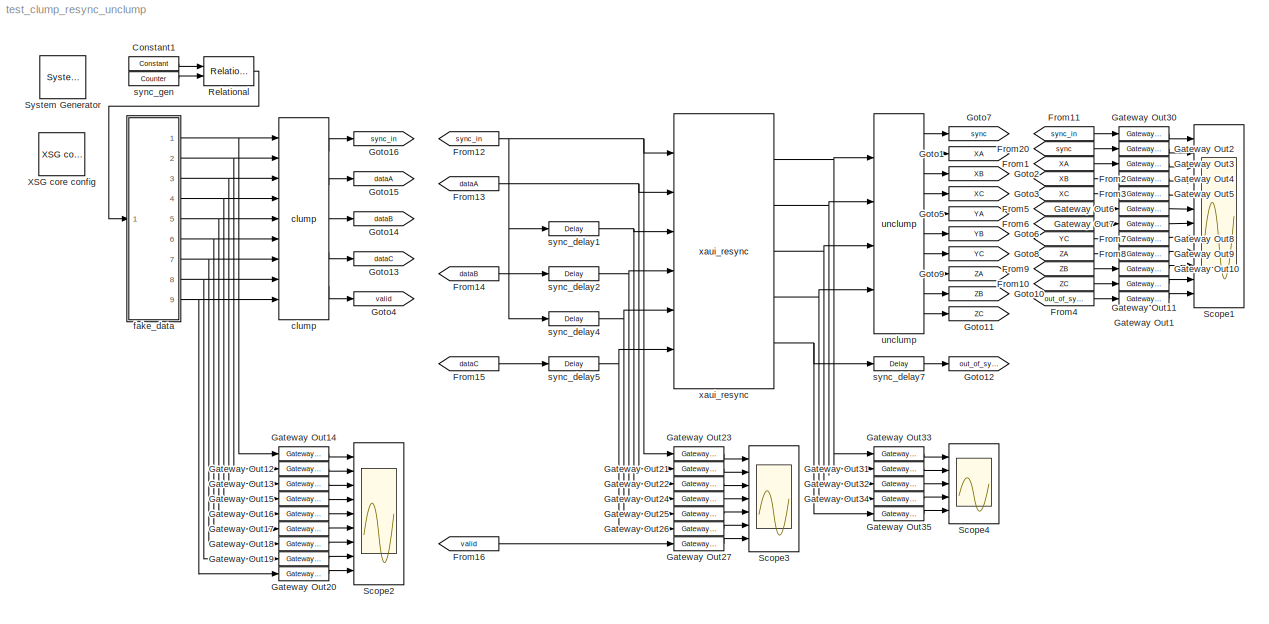
MODEL test_clump_resync_unclump
KIND model
BLOCK [Reference]  System Generator  REF=xbsIndex_r4/ System Generator
  AttributesFormatString = System\\nGenerator
  FunctionWithSeparateData = off
  Ports = []
  RTWMemSecDataConstants = Inherit from model
  RTWMemSecDataInternal = Inherit from model
  RTWMemSecDataParameters = Inherit from model
  RTWMemSecFuncExecute = Inherit from model
  RTWMemSecFuncInitTerm = Inherit from model
  SID = 1
  ShowPortLabels = FromPortIcon
  SourceBlock = xbsIndex_r4/ System Generator
  SourceType = Xilinx System Generator Block
  SystemSampleTime = -1
  Tag = genX
  UserData = DataTag0
  UserDataPersistent = on
  block_type = sysgen
  block_version = 10.1.1
  clock_wrapper = Clock Enables
  core_generation = According to Block Masks
  dbl_ovrd = According to Block Masks
  dcm_input_clock_period = 100
  deprecated_control = off
  directory = ./test_link_mux_demux/sysgen
  eval_field = 0
  has_advanced_control = 0
  incr_netlist = off
  infoedit = System Generator
  package = ff1136
  part = xc5vsx95t
  run_coregen = off
  sg_icon_stat = 46,43,-1,-1,red,beige,0,07734,right
  sg_mask_display = fprintf('','COMMENT: begin icon graphics');\npatch([0 46 46 0 ],[0 0 43 43 ],[0.93 0.92 0.86]);\npatch([11 4 14 4 11 22 25 28 40 30 21 14 23 14 21 30 40 28 25 22 11 ],[5 12 22 32 39 39 36 39 39 29 38 31 22 13 6 15 5 5 8 5 5 ],[0.6 0.2 0.25]);\nplot([0 46 46 0 0 ],[0 0 43 43 0 ]);\nfprintf('','COMMENT: end icon graphics');\nfprintf('','COMMENT: begin icon text');\nfprintf('','COMMENT: end icon text...<+5ch>
  sggui_pos = -1,-1,-1,-1
  simulink_period = 1
  speed = -1
  synthesis_tool = XST
  sysclk_period = 5
  testbench = off
  trim_vbits = Everywhere in SubSystem
  xilinxfamily = virtex5
BLOCK [Reference] Constant1  REF=xbsIndex_r4/Constant
  Ports = [0, 1]
  SID = 199
  SourceBlock = xbsIndex_r4/Constant
  SourceType = Xilinx Constant Block Block
  arith_type = Unsigned
  bin_pt = 0
  block_type = constant
  block_version = 10.1.3
  carry = CIN
  const = 15
  dbl_ovrd = off
  dsp48_infoedit = The use of this block for DSP48 instructions is deprecated.  Please use the Opmode block.
  equ = P=C
  explicit_period = on
  has_advanced_control = 0
  inp1 = P
  inp2 = PCIN>>17
  n_bits = 7
  opr = +
  opselect = C
  period = 1
  sg_icon_stat = 50,14,0,1,white,blue,0,1164c07c,right,
  sg_list_contents = {'table'=>{'carry'=>'popup(0|1|CIN|~SIGN(P or PCIN)|~SIGN(A*B or A:B)|~SIGND(A*B or A:B))','inp1'=>'popup(0|P|A:B|A*B|C|P+C|A:B+C)','inp2'=>'popup(0|PCIN|P|C|PCIN>>17|P>>17)','opselect'=>'popup(C + A*B|PCIN + A*B|P + A*B|A * B|C + A:B|C - A:B|C|Custom)','userSelections'=>{'carry'=>'CIN','inp1'=>'P','inp2'=>'PCIN>>17','opselect'=>'C'}}}  <repeated x9 — deduplicated; at blocks: Constant1, Constant, Constant2, Constant3, Constant4, Constant5, Constant6>
  sg_mask_display = fprintf('','COMMENT: begin icon graphics');\npatch([0 1 1 0 ],[0 0 1 1 ],[0.77 0.82 0.91]);\npatch([0.42 0.38 0.44 0.38 0.42 0.5 0.52 0.54 0.62 0.56 0.5 0.46 0.52 0.46 0.5 0.56 0.62 0.54 0.52 0.5 0.42 ],[0.142857 0.285714 0.5 0.714286 0.857143 0.857143 0.785714 0.857143 0.857143 0.642857 0.857143 0.714286 0.5 0.285714 0.142857 0.357143 0.142857 0.142857 0.214286 0.142857 0.142857 ],[0.98 0.96 0.92...<+207ch>
  sggui_pos = 20,20,400,346
BLOCK [From] From1
  CloseFcn = tagdialog Close
  GotoTag = XA
  SID = 11
BLOCK [From] From10
  CloseFcn = tagdialog Close
  GotoTag = ZC
  SID = 12
BLOCK [From] From11
  CloseFcn = tagdialog Close
  GotoTag = sync_in
  SID = 190
BLOCK [From] From12
  CloseFcn = tagdialog Close
  GotoTag = sync_in
  SID = 161
BLOCK [From] From13
  CloseFcn = tagdialog Close
  GotoTag = dataA
  SID = 162
BLOCK [From] From14
  CloseFcn = tagdialog Close
  GotoTag = dataB
  SID = 163
BLOCK [From] From15
  CloseFcn = tagdialog Close
  GotoTag = dataC
  SID = 164
BLOCK [From] From16
  CloseFcn = tagdialog Close
  GotoTag = valid
  SID = 202
BLOCK [From] From2
  CloseFcn = tagdialog Close
  GotoTag = XB
  SID = 14
BLOCK [From] From20
  CloseFcn = tagdialog Close
  GotoTag = sync
  SID = 15
BLOCK [From] From3
  CloseFcn = tagdialog Close
  GotoTag = XC
  SID = 16
BLOCK [From] From4
  CloseFcn = tagdialog Close
  GotoTag = out_of_sync
  SID = 188
BLOCK [From] From5
  CloseFcn = tagdialog Close
  GotoTag = YA
  SID = 18
BLOCK [From] From6
  CloseFcn = tagdialog Close
  GotoTag = YB
  SID = 19
BLOCK [From] From7
  CloseFcn = tagdialog Close
  GotoTag = YC
  SID = 20
BLOCK [From] From8
  CloseFcn = tagdialog Close
  GotoTag = ZA
  SID = 21
BLOCK [From] From9
  CloseFcn = tagdialog Close
  GotoTag = ZB
  SID = 22
BLOCK [Reference] Gateway Out1  REF=xbsIndex_r4/Gateway Out
  LOCs = {}
  Ports = [1, 1]
  SID = 187
  SourceBlock = xbsIndex_r4/Gateway Out
  SourceType = Xilinx Gateway Out Block
  block_type = gatewayout
  block_version = 11.3
  has_advanced_control = 0
  hdl_port = on
  infoedit = Gateway out block.  Converts Xilinx fixed point inputs into ouputs of type Simulink integer, double, or fixed point.<br><br>Hardware notes:  In hardware these blocks become top level output ports or are discarded, depending on how they are configured.  <repeated x33 — deduplicated; at blocks: Gateway Out1, Gateway Out10, Gateway Out11, Gateway Out12, Gateway Out13, Gateway Out14, Gateway Out15, Gateway Out16, Gateway Out17, Gateway Out18, Gateway Out19, Gateway Out2, Gateway Out20, Gateway Out21, Gateway Out22, Gateway Out23, +17 more>
  locs_specified = off
  sg_icon_stat = 50,14,1,1,white,yellow,0,cc31b7ac,right,
  sg_mask_display = fprintf('','COMMENT: begin icon graphics');\npatch([0 1 1 0 ],[0 0 1 1 ],[0.95 0.93 0.65]);\npatch([0.42 0.38 0.44 0.38 0.42 0.5 0.52 0.54 0.62 0.56 0.5 0.46 0.52 0.46 0.5 0.56 0.62 0.54 0.52 0.5 0.42 ],[0.142857 0.285714 0.5 0.714286 0.857143 0.857143 0.785714 0.857143 0.857143 0.642857 0.857143 0.714286 0.5 0.285714 0.142857 0.357143 0.142857 0.142857 0.214286 0.142857 0.142857 ],[0.98 0.96 0.92...<+288ch>  <repeated x33 — deduplicated; at blocks: Gateway Out1, Gateway Out10, Gateway Out11, Gateway Out12, Gateway Out13, Gateway Out14, Gateway Out15, Gateway Out16, Gateway Out17, Gateway Out18, Gateway Out19, Gateway Out2, Gateway Out20, Gateway Out21, Gateway Out22, Gateway Out23, +17 more>
  sggui_pos = -1,-1,-1,-1
  timing_constraint = None
  xl_area = [0,0,0,0,0,0,0]
  xl_use_area = off
BLOCK [Reference] Gateway Out10  REF=xbsIndex_r4/Gateway Out
  LOCs = {}
  Ports = [1, 1]
  SID = 120
  SourceBlock = xbsIndex_r4/Gateway Out
  SourceType = Xilinx Gateway Out Block
  block_type = gatewayout
  block_version = 11.3
  has_advanced_control = 0
  hdl_port = on
  locs_specified = off
  sg_icon_stat = 50,14,1,1,white,yellow,0,cc31b7ac,right,
  sggui_pos = -1,-1,-1,-1
  timing_constraint = None
  xl_area = [0,0,0,0,0,0,0]
  xl_use_area = off
BLOCK [Reference] Gateway Out11  REF=xbsIndex_r4/Gateway Out
  LOCs = {}
  Ports = [1, 1]
  SID = 121
  SourceBlock = xbsIndex_r4/Gateway Out
  SourceType = Xilinx Gateway Out Block
  block_type = gatewayout
  block_version = 11.3
  has_advanced_control = 0
  hdl_port = on
  locs_specified = off
  sg_icon_stat = 50,14,1,1,white,yellow,0,cc31b7ac,right,
  sggui_pos = -1,-1,-1,-1
  timing_constraint = None
  xl_area = [0,0,0,0,0,0,0]
  xl_use_area = off
BLOCK [Reference] Gateway Out12  REF=xbsIndex_r4/Gateway Out
  LOCs = {}
  Ports = [1, 1]
  SID = 92
  SourceBlock = xbsIndex_r4/Gateway Out
  SourceType = Xilinx Gateway Out Block
  block_type = gatewayout
  block_version = 11.3
  has_advanced_control = 0
  hdl_port = on
  locs_specified = off
  sg_icon_stat = 50,14,1,1,white,yellow,0,cc31b7ac,right,
  sggui_pos = -1,-1,-1,-1
  timing_constraint = None
  xl_area = [0,0,0,0,0,0,0]
  xl_use_area = off
BLOCK [Reference] Gateway Out13  REF=xbsIndex_r4/Gateway Out
  LOCs = {}
  Ports = [1, 1]
  SID = 93
  SourceBlock = xbsIndex_r4/Gateway Out
  SourceType = Xilinx Gateway Out Block
  block_type = gatewayout
  block_version = 11.3
  has_advanced_control = 0
  hdl_port = on
  locs_specified = off
  sg_icon_stat = 50,14,1,1,white,yellow,0,cc31b7ac,right,
  sggui_pos = -1,-1,-1,-1
  timing_constraint = None
  xl_area = [0,0,0,0,0,0,0]
  xl_use_area = off
BLOCK [Reference] Gateway Out14  REF=xbsIndex_r4/Gateway Out
  LOCs = {}
  Ports = [1, 1]
  SID = 94
  SourceBlock = xbsIndex_r4/Gateway Out
  SourceType = Xilinx Gateway Out Block
  block_type = gatewayout
  block_version = 11.3
  has_advanced_control = 0
  hdl_port = on
  locs_specified = off
  sg_icon_stat = 50,14,1,1,white,yellow,0,cc31b7ac,right,
  sggui_pos = -1,-1,-1,-1
  timing_constraint = None
  xl_area = [0,0,0,0,0,0,0]
  xl_use_area = off
BLOCK [Reference] Gateway Out15  REF=xbsIndex_r4/Gateway Out
  LOCs = {}
  Ports = [1, 1]
  SID = 95
  SourceBlock = xbsIndex_r4/Gateway Out
  SourceType = Xilinx Gateway Out Block
  block_type = gatewayout
  block_version = 11.3
  has_advanced_control = 0
  hdl_port = on
  locs_specified = off
  sg_icon_stat = 50,14,1,1,white,yellow,0,cc31b7ac,right,
  sggui_pos = -1,-1,-1,-1
  timing_constraint = None
  xl_area = [0,0,0,0,0,0,0]
  xl_use_area = off
BLOCK [Reference] Gateway Out16  REF=xbsIndex_r4/Gateway Out
  LOCs = {}
  Ports = [1, 1]
  SID = 96
  SourceBlock = xbsIndex_r4/Gateway Out
  SourceType = Xilinx Gateway Out Block
  block_type = gatewayout
  block_version = 11.3
  has_advanced_control = 0
  hdl_port = on
  locs_specified = off
  sg_icon_stat = 50,14,1,1,white,yellow,0,cc31b7ac,right,
  sggui_pos = -1,-1,-1,-1
  timing_constraint = None
  xl_area = [0,0,0,0,0,0,0]
  xl_use_area = off
BLOCK [Reference] Gateway Out17  REF=xbsIndex_r4/Gateway Out
  LOCs = {}
  Ports = [1, 1]
  SID = 97
  SourceBlock = xbsIndex_r4/Gateway Out
  SourceType = Xilinx Gateway Out Block
  block_type = gatewayout
  block_version = 11.3
  has_advanced_control = 0
  hdl_port = on
  locs_specified = off
  sg_icon_stat = 50,14,1,1,white,yellow,0,cc31b7ac,right,
  sggui_pos = -1,-1,-1,-1
  timing_constraint = None
  xl_area = [0,0,0,0,0,0,0]
  xl_use_area = off
BLOCK [Reference] Gateway Out18  REF=xbsIndex_r4/Gateway Out
  LOCs = {}
  Ports = [1, 1]
  SID = 98
  SourceBlock = xbsIndex_r4/Gateway Out
  SourceType = Xilinx Gateway Out Block
  block_type = gatewayout
  block_version = 11.3
  has_advanced_control = 0
  hdl_port = on
  locs_specified = off
  sg_icon_stat = 50,14,1,1,white,yellow,0,cc31b7ac,right,
  sggui_pos = -1,-1,-1,-1
  timing_constraint = None
  xl_area = [0,0,0,0,0,0,0]
  xl_use_area = off
BLOCK [Reference] Gateway Out19  REF=xbsIndex_r4/Gateway Out
  LOCs = {}
  Ports = [1, 1]
  SID = 99
  SourceBlock = xbsIndex_r4/Gateway Out
  SourceType = Xilinx Gateway Out Block
  block_type = gatewayout
  block_version = 11.3
  has_advanced_control = 0
  hdl_port = on
  locs_specified = off
  sg_icon_stat = 50,14,1,1,white,yellow,0,cc31b7ac,right,
  sggui_pos = -1,-1,-1,-1
  timing_constraint = None
  xl_area = [0,0,0,0,0,0,0]
  xl_use_area = off
BLOCK [Reference] Gateway Out2  REF=xbsIndex_r4/Gateway Out
  LOCs = {}
  Ports = [1, 1]
  SID = 122
  SourceBlock = xbsIndex_r4/Gateway Out
  SourceType = Xilinx Gateway Out Block
  block_type = gatewayout
  block_version = 11.3
  has_advanced_control = 0
  hdl_port = on
  locs_specified = off
  sg_icon_stat = 50,14,1,1,white,yellow,0,cc31b7ac,right,
  sggui_pos = -1,-1,-1,-1
  timing_constraint = None
  xl_area = [0,0,0,0,0,0,0]
  xl_use_area = off
BLOCK [Reference] Gateway Out20  REF=xbsIndex_r4/Gateway Out
  LOCs = {}
  Ports = [1, 1]
  SID = 100
  SourceBlock = xbsIndex_r4/Gateway Out
  SourceType = Xilinx Gateway Out Block
  block_type = gatewayout
  block_version = 11.3
  has_advanced_control = 0
  hdl_port = on
  locs_specified = off
  sg_icon_stat = 50,14,1,1,white,yellow,0,cc31b7ac,right,
  sggui_pos = -1,-1,-1,-1
  timing_constraint = None
  xl_area = [0,0,0,0,0,0,0]
  xl_use_area = off
BLOCK [Reference] Gateway Out21  REF=xbsIndex_r4/Gateway Out
  LOCs = {}
  Ports = [1, 1]
  SID = 175
  SourceBlock = xbsIndex_r4/Gateway Out
  SourceType = Xilinx Gateway Out Block
  block_type = gatewayout
  block_version = 11.3
  has_advanced_control = 0
  hdl_port = on
  locs_specified = off
  sg_icon_stat = 50,14,1,1,white,yellow,0,cc31b7ac,right,
  sggui_pos = -1,-1,-1,-1
  timing_constraint = None
  xl_area = [0,0,0,0,0,0,0]
  xl_use_area = off
BLOCK [Reference] Gateway Out22  REF=xbsIndex_r4/Gateway Out
  LOCs = {}
  Ports = [1, 1]
  SID = 176
  SourceBlock = xbsIndex_r4/Gateway Out
  SourceType = Xilinx Gateway Out Block
  block_type = gatewayout
  block_version = 11.3
  has_advanced_control = 0
  hdl_port = on
  locs_specified = off
  sg_icon_stat = 50,14,1,1,white,yellow,0,cc31b7ac,right,
  sggui_pos = -1,-1,-1,-1
  timing_constraint = None
  xl_area = [0,0,0,0,0,0,0]
  xl_use_area = off
BLOCK [Reference] Gateway Out23  REF=xbsIndex_r4/Gateway Out
  LOCs = {}
  Ports = [1, 1]
  SID = 177
  SourceBlock = xbsIndex_r4/Gateway Out
  SourceType = Xilinx Gateway Out Block
  block_type = gatewayout
  block_version = 11.3
  has_advanced_control = 0
  hdl_port = on
  locs_specified = off
  sg_icon_stat = 50,14,1,1,white,yellow,0,cc31b7ac,right,
  sggui_pos = -1,-1,-1,-1
  timing_constraint = None
  xl_area = [0,0,0,0,0,0,0]
  xl_use_area = off
BLOCK [Reference] Gateway Out24  REF=xbsIndex_r4/Gateway Out
  LOCs = {}
  Ports = [1, 1]
  SID = 178
  SourceBlock = xbsIndex_r4/Gateway Out
  SourceType = Xilinx Gateway Out Block
  block_type = gatewayout
  block_version = 11.3
  has_advanced_control = 0
  hdl_port = on
  locs_specified = off
  sg_icon_stat = 50,14,1,1,white,yellow,0,cc31b7ac,right,
  sggui_pos = -1,-1,-1,-1
  timing_constraint = None
  xl_area = [0,0,0,0,0,0,0]
  xl_use_area = off
BLOCK [Reference] Gateway Out25  REF=xbsIndex_r4/Gateway Out
  LOCs = {}
  Ports = [1, 1]
  SID = 179
  SourceBlock = xbsIndex_r4/Gateway Out
  SourceType = Xilinx Gateway Out Block
  block_type = gatewayout
  block_version = 11.3
  has_advanced_control = 0
  hdl_port = on
  locs_specified = off
  sg_icon_stat = 50,14,1,1,white,yellow,0,cc31b7ac,right,
  sggui_pos = -1,-1,-1,-1
  timing_constraint = None
  xl_area = [0,0,0,0,0,0,0]
  xl_use_area = off
BLOCK [Reference] Gateway Out26  REF=xbsIndex_r4/Gateway Out
  LOCs = {}
  Ports = [1, 1]
  SID = 180
  SourceBlock = xbsIndex_r4/Gateway Out
  SourceType = Xilinx Gateway Out Block
  block_type = gatewayout
  block_version = 11.3
  has_advanced_control = 0
  hdl_port = on
  locs_specified = off
  sg_icon_stat = 50,14,1,1,white,yellow,0,cc31b7ac,right,
  sggui_pos = -1,-1,-1,-1
  timing_constraint = None
  xl_area = [0,0,0,0,0,0,0]
  xl_use_area = off
BLOCK [Reference] Gateway Out27  REF=xbsIndex_r4/Gateway Out
  LOCs = {}
  Ports = [1, 1]
  SID = 198
  SourceBlock = xbsIndex_r4/Gateway Out
  SourceType = Xilinx Gateway Out Block
  block_type = gatewayout
  block_version = 11.3
  has_advanced_control = 0
  hdl_port = on
  locs_specified = off
  sg_icon_stat = 50,14,1,1,white,yellow,0,cc31b7ac,right,
  sggui_pos = -1,-1,-1,-1
  timing_constraint = None
  xl_area = [0,0,0,0,0,0,0]
  xl_use_area = off
BLOCK [Reference] Gateway Out3  REF=xbsIndex_r4/Gateway Out
  LOCs = {}
  Ports = [1, 1]
  SID = 123
  SourceBlock = xbsIndex_r4/Gateway Out
  SourceType = Xilinx Gateway Out Block
  block_type = gatewayout
  block_version = 11.3
  has_advanced_control = 0
  hdl_port = on
  locs_specified = off
  sg_icon_stat = 50,14,1,1,white,yellow,0,cc31b7ac,right,
  sggui_pos = -1,-1,-1,-1
  timing_constraint = None
  xl_area = [0,0,0,0,0,0,0]
  xl_use_area = off
BLOCK [Reference] Gateway Out30  REF=xbsIndex_r4/Gateway Out
  LOCs = {}
  Ports = [1, 1]
  SID = 191
  SourceBlock = xbsIndex_r4/Gateway Out
  SourceType = Xilinx Gateway Out Block
  block_type = gatewayout
  block_version = 11.3
  has_advanced_control = 0
  hdl_port = on
  locs_specified = off
  sg_icon_stat = 50,14,1,1,white,yellow,0,cc31b7ac,right,
  sggui_pos = -1,-1,-1,-1
  timing_constraint = None
  xl_area = [0,0,0,0,0,0,0]
  xl_use_area = off
BLOCK [Reference] Gateway Out31  REF=xbsIndex_r4/Gateway Out
  LOCs = {}
  Ports = [1, 1]
  SID = 193
  SourceBlock = xbsIndex_r4/Gateway Out
  SourceType = Xilinx Gateway Out Block
  block_type = gatewayout
  block_version = 11.3
  has_advanced_control = 0
  hdl_port = on
  locs_specified = off
  sg_icon_stat = 50,14,1,1,white,yellow,0,cc31b7ac,right,
  sggui_pos = -1,-1,-1,-1
  timing_constraint = None
  xl_area = [0,0,0,0,0,0,0]
  xl_use_area = off
BLOCK [Reference] Gateway Out32  REF=xbsIndex_r4/Gateway Out
  LOCs = {}
  Ports = [1, 1]
  SID = 194
  SourceBlock = xbsIndex_r4/Gateway Out
  SourceType = Xilinx Gateway Out Block
  block_type = gatewayout
  block_version = 11.3
  has_advanced_control = 0
  hdl_port = on
  locs_specified = off
  sg_icon_stat = 50,14,1,1,white,yellow,0,cc31b7ac,right,
  sggui_pos = -1,-1,-1,-1
  timing_constraint = None
  xl_area = [0,0,0,0,0,0,0]
  xl_use_area = off
BLOCK [Reference] Gateway Out33  REF=xbsIndex_r4/Gateway Out
  LOCs = {}
  Ports = [1, 1]
  SID = 195
  SourceBlock = xbsIndex_r4/Gateway Out
  SourceType = Xilinx Gateway Out Block
  block_type = gatewayout
  block_version = 11.3
  has_advanced_control = 0
  hdl_port = on
  locs_specified = off
  sg_icon_stat = 50,14,1,1,white,yellow,0,cc31b7ac,right,
  sggui_pos = -1,-1,-1,-1
  timing_constraint = None
  xl_area = [0,0,0,0,0,0,0]
  xl_use_area = off
BLOCK [Reference] Gateway Out34  REF=xbsIndex_r4/Gateway Out
  LOCs = {}
  Ports = [1, 1]
  SID = 196
  SourceBlock = xbsIndex_r4/Gateway Out
  SourceType = Xilinx Gateway Out Block
  block_type = gatewayout
  block_version = 11.3
  has_advanced_control = 0
  hdl_port = on
  locs_specified = off
  sg_icon_stat = 50,14,1,1,white,yellow,0,cc31b7ac,right,
  sggui_pos = -1,-1,-1,-1
  timing_constraint = None
  xl_area = [0,0,0,0,0,0,0]
  xl_use_area = off
BLOCK [Reference] Gateway Out35  REF=xbsIndex_r4/Gateway Out
  LOCs = {}
  Ports = [1, 1]
  SID = 197
  SourceBlock = xbsIndex_r4/Gateway Out
  SourceType = Xilinx Gateway Out Block
  block_type = gatewayout
  block_version = 11.3
  has_advanced_control = 0
  hdl_port = on
  locs_specified = off
  sg_icon_stat = 50,14,1,1,white,yellow,0,cc31b7ac,right,
  sggui_pos = -1,-1,-1,-1
  timing_constraint = None
  xl_area = [0,0,0,0,0,0,0]
  xl_use_area = off
BLOCK [Reference] Gateway Out4  REF=xbsIndex_r4/Gateway Out
  LOCs = {}
  Ports = [1, 1]
  SID = 124
  SourceBlock = xbsIndex_r4/Gateway Out
  SourceType = Xilinx Gateway Out Block
  block_type = gatewayout
  block_version = 11.3
  has_advanced_control = 0
  hdl_port = on
  locs_specified = off
  sg_icon_stat = 50,14,1,1,white,yellow,0,cc31b7ac,right,
  sggui_pos = -1,-1,-1,-1
  timing_constraint = None
  xl_area = [0,0,0,0,0,0,0]
  xl_use_area = off
BLOCK [Reference] Gateway Out5  REF=xbsIndex_r4/Gateway Out
  LOCs = {}
  Ports = [1, 1]
  SID = 125
  SourceBlock = xbsIndex_r4/Gateway Out
  SourceType = Xilinx Gateway Out Block
  block_type = gatewayout
  block_version = 11.3
  has_advanced_control = 0
  hdl_port = on
  locs_specified = off
  sg_icon_stat = 50,14,1,1,white,yellow,0,cc31b7ac,right,
  sggui_pos = -1,-1,-1,-1
  timing_constraint = None
  xl_area = [0,0,0,0,0,0,0]
  xl_use_area = off
BLOCK [Reference] Gateway Out6  REF=xbsIndex_r4/Gateway Out
  LOCs = {}
  Ports = [1, 1]
  SID = 126
  SourceBlock = xbsIndex_r4/Gateway Out
  SourceType = Xilinx Gateway Out Block
  block_type = gatewayout
  block_version = 11.3
  has_advanced_control = 0
  hdl_port = on
  locs_specified = off
  sg_icon_stat = 50,14,1,1,white,yellow,0,cc31b7ac,right,
  sggui_pos = -1,-1,-1,-1
  timing_constraint = None
  xl_area = [0,0,0,0,0,0,0]
  xl_use_area = off
BLOCK [Reference] Gateway Out7  REF=xbsIndex_r4/Gateway Out
  LOCs = {}
  Ports = [1, 1]
  SID = 127
  SourceBlock = xbsIndex_r4/Gateway Out
  SourceType = Xilinx Gateway Out Block
  block_type = gatewayout
  block_version = 11.3
  has_advanced_control = 0
  hdl_port = on
  locs_specified = off
  sg_icon_stat = 50,14,1,1,white,yellow,0,cc31b7ac,right,
  sggui_pos = -1,-1,-1,-1
  timing_constraint = None
  xl_area = [0,0,0,0,0,0,0]
  xl_use_area = off
BLOCK [Reference] Gateway Out8  REF=xbsIndex_r4/Gateway Out
  LOCs = {}
  Ports = [1, 1]
  SID = 128
  SourceBlock = xbsIndex_r4/Gateway Out
  SourceType = Xilinx Gateway Out Block
  block_type = gatewayout
  block_version = 11.3
  has_advanced_control = 0
  hdl_port = on
  locs_specified = off
  sg_icon_stat = 50,14,1,1,white,yellow,0,cc31b7ac,right,
  sggui_pos = -1,-1,-1,-1
  timing_constraint = None
  xl_area = [0,0,0,0,0,0,0]
  xl_use_area = off
BLOCK [Reference] Gateway Out9  REF=xbsIndex_r4/Gateway Out
  LOCs = {}
  Ports = [1, 1]
  SID = 129
  SourceBlock = xbsIndex_r4/Gateway Out
  SourceType = Xilinx Gateway Out Block
  block_type = gatewayout
  block_version = 11.3
  has_advanced_control = 0
  hdl_port = on
  locs_specified = off
  sg_icon_stat = 50,14,1,1,white,yellow,0,cc31b7ac,right,
  sggui_pos = -1,-1,-1,-1
  timing_constraint = None
  xl_area = [0,0,0,0,0,0,0]
  xl_use_area = off
BLOCK [Goto] Goto1
  GotoTag = XA
  SID = 35
  TagVisibility = local
BLOCK [Goto] Goto10
  GotoTag = ZB
  SID = 36
  TagVisibility = local
BLOCK [Goto] Goto11
  GotoTag = ZC
  SID = 37
  TagVisibility = local
BLOCK [Goto] Goto12
  GotoTag = out_of_sync
  SID = 186
  TagVisibility = local
BLOCK [Goto] Goto13
  GotoTag = dataC
  SID = 157
  TagVisibility = local
BLOCK [Goto] Goto14
  GotoTag = dataB
  SID = 158
  TagVisibility = local
BLOCK [Goto] Goto15
  GotoTag = dataA
  SID = 159
  TagVisibility = local
BLOCK [Goto] Goto16
  GotoTag = sync_in
  SID = 160
  TagVisibility = local
BLOCK [Goto] Goto2
  GotoTag = XB
  SID = 39
  TagVisibility = local
BLOCK [Goto] Goto3
  GotoTag = XC
  SID = 40
  TagVisibility = local
BLOCK [Goto] Goto4
  GotoTag = valid
  SID = 41
  TagVisibility = local
BLOCK [Goto] Goto5
  GotoTag = YA
  SID = 42
  TagVisibility = local
BLOCK [Goto] Goto6
  GotoTag = YB
  SID = 43
  TagVisibility = local
BLOCK [Goto] Goto7
  GotoTag = sync
  SID = 44
  TagVisibility = local
BLOCK [Goto] Goto8
  GotoTag = YC
  SID = 45
  TagVisibility = local
BLOCK [Goto] Goto9
  GotoTag = ZA
  SID = 46
  TagVisibility = local
BLOCK [Reference] Relational  REF=xbsIndex_r4/Relational
  Ports = [2, 1]
  SID = 200
  SourceBlock = xbsIndex_r4/Relational
  SourceType = Xilinx Arithmetic Relational Operator Block
  block_type = relational
  block_version = 11.4
  dbl_ovrd = off
  en = off
  has_advanced_control = 0
  latency = 1
  mode = a=b
  sg_icon_stat = 50,29,2,1,white,blue,0,2d4703fd,right,
  sg_mask_display = fprintf('','COMMENT: begin icon graphics');\npatch([0 1 1 0 ],[0 0 1 1 ],[0.77 0.82 0.91]);\npatch([0.34 0.24 0.38 0.24 0.34 0.5 0.54 0.58 0.74 0.62 0.5 0.4 0.54 0.4 0.5 0.62 0.74 0.58 0.54 0.5 0.34 ],[0.103448 0.275862 0.517241 0.758621 0.931034 0.931034 0.862069 0.931034 0.931034 0.724138 0.931034 0.758621 0.517241 0.275862 0.103448 0.310345 0.103448 0.103448 0.172414 0.103448 0.103448 ],[0.98 0...<+330ch>
  sggui_pos = -1,-1,-1,-1
  xl_area = [0,0,0,0,0,0,0]
  xl_use_area = off
BLOCK [Scope] Scope1
  DataFormat = StructureWithTime
  Floating = off
  NumInputPorts = 12
  Ports = [12]
  SID = 189
  SampleTime = 0
  YMax = 5~5~5~5~5~5~5~5~5~5~5~5
  YMin = -5~-5~-5~-5~-5~-5~-5~-5~-5~-5~-5~-5
  ZoomMode = xonly
BLOCK [Scope] Scope2
  DataFormat = StructureWithTime
  Floating = off
  NumInputPorts = 9
  Ports = [9]
  SID = 101
  SampleTime = 0
  SaveName = ScopeData4
  YMax = 5~5~5~5~5~5~5~5~5
  YMin = -5~-5~-5~-5~-5~-5~-5~-5~-5
  ZoomMode = yonly
BLOCK [Scope] Scope3
  DataFormat = StructureWithTime
  Floating = off
  NumInputPorts = 7
  Ports = [7]
  SID = 184
  SampleTime = 0
  SaveName = ScopeData5
  YMax = 5~5~5~5~5~5~5
  YMin = -5~-5~-5~-5~-5~-5~-5
  ZoomMode = xonly
BLOCK [Scope] Scope4
  DataFormat = StructureWithTime
  Floating = off
  NumInputPorts = 5
  Ports = [5]
  SID = 192
  SampleTime = 0
  SaveName = ScopeData1
  YMax = 5~5~5~5~5
  YMin = -5~-5~-5~-5~-5
  ZoomMode = xonly
BLOCK [Reference] XSG core config  REF=xps_library/XSG core config  (lib defined in mdl_00b5cec29cd0, mdl_02ab6ecaa3d1, +5 more)
  BEE2_ctrl_clk_src = sys_clk
  BEE2_usr_clk_src = sys_clk
  CORR_clk_src = sys_clk
  FunctionWithSeparateData = off
  Ports = []
  ROACH_clk_src = sys_clk2x
  RTWMemSecDataConstants = Inherit from model
  RTWMemSecDataInternal = Inherit from model
  RTWMemSecDataParameters = Inherit from model
  RTWMemSecFuncExecute = Inherit from model
  RTWMemSecFuncInitTerm = Inherit from model
  SID = 52
  ShowPortLabels = FromPortIcon
  SourceBlock = xps_library/XSG core config
  SourceType = xsg core config
  SystemSampleTime = -1
  Tag = xps:xsg
  clk_rate = 200
  clk_src = sys_clk2x
  gpio_clk_bit_index = 0
  gpio_clk_io_group = iBOB:sma
  hw_sys = ROACH:sx95t
  iBOB_clk_src = sys_clk
  ibob_linux = off
  mpc_type = powerpc440_ext
  sample_period = 1
  synthesis_tool = XST
BLOCK [Reference] clump  REF=isi_correlator_lib/clump  (lib defined in mdl_4b72aa53f299)
  FunctionWithSeparateData = off
  Ports = [9, 5]
  RTWMemSecDataConstants = Inherit from model
  RTWMemSecDataInternal = Inherit from model
  RTWMemSecDataParameters = Inherit from model
  RTWMemSecFuncExecute = Inherit from model
  RTWMemSecFuncInitTerm = Inherit from model
  SID = 53
  ShowPortLabels = FromPortIcon
  SourceBlock = isi_correlator_lib/clump
  SystemSampleTime = -1
  latency = 1
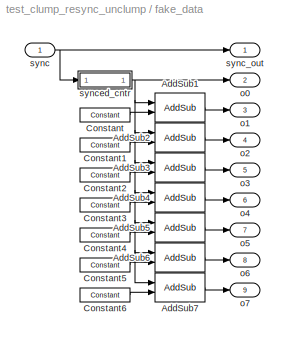
BLOCK [SubSystem] fake_data
  FunctionWithSeparateData = off
  MaskHideContents = off
  MinAlgLoopOccurrences = off
  Opaque = off
  Ports = [1, 9]
  PropExecContextOutsideSubsystem = off
  RTWSystemCode = Auto
  RequestExecContextInheritance = off
  SID = 130
BLOCK [Reference] fake_data/AddSub1  REF=xbsIndex_r4/AddSub
  Ports = [2, 1]
  SID = 132
  SourceBlock = xbsIndex_r4/AddSub
  SourceType = Xilinx Adder/Subtracter Block
  arith_type = Unsigned
  bin_pt = 0
  block_type = addsub
  block_version = 11.4
  dbl_ovrd = off
  en = off
  has_advanced_control = 0
  hw_selection = Fabric
  latency = 0
  mode = Addition
  n_bits = 8
  overflow = Wrap
  pipelined = off
  precision = User Defined
  quantization = Truncate
  sg_icon_stat = 50,29,2,1,white,blue,0,e139daf6,right,
  sg_mask_display = fprintf('','COMMENT: begin icon graphics');\npatch([0 1 1 0 ],[0 0 1 1 ],[0.77 0.82 0.91]);\npatch([0.34 0.24 0.38 0.24 0.34 0.5 0.54 0.58 0.74 0.62 0.5 0.4 0.54 0.4 0.5 0.62 0.74 0.58 0.54 0.5 0.34 ],[0.103448 0.275862 0.517241 0.758621 0.931034 0.931034 0.862069 0.931034 0.931034 0.724138 0.931034 0.758621 0.517241 0.275862 0.103448 0.310345 0.103448 0.103448 0.172414 0.103448 0.103448 ],[0.98 0...<+325ch>  <repeated x7 — deduplicated; at blocks: AddSub1, AddSub2, AddSub3, AddSub4, AddSub5, AddSub6, AddSub7>
  sggui_pos = -1,-1,-1,-1
  use_behavioral_HDL = off
  use_carryin = off
  use_carryout = off
  xl_area = [0,0,0,0,0,0,0]
  xl_use_area = off
BLOCK [Reference] fake_data/AddSub2  REF=xbsIndex_r4/AddSub
  Ports = [2, 1]
  SID = 133
  SourceBlock = xbsIndex_r4/AddSub
  SourceType = Xilinx Adder/Subtracter Block
  arith_type = Unsigned
  bin_pt = 0
  block_type = addsub
  block_version = 11.4
  dbl_ovrd = off
  en = off
  has_advanced_control = 0
  hw_selection = Fabric
  latency = 0
  mode = Addition
  n_bits = 8
  overflow = Wrap
  pipelined = off
  precision = User Defined
  quantization = Truncate
  sg_icon_stat = 50,29,2,1,white,blue,0,e139daf6,right,
  sggui_pos = -1,-1,-1,-1
  use_behavioral_HDL = off
  use_carryin = off
  use_carryout = off
  xl_area = [0,0,0,0,0,0,0]
  xl_use_area = off
BLOCK [Reference] fake_data/AddSub3  REF=xbsIndex_r4/AddSub
  Ports = [2, 1]
  SID = 134
  SourceBlock = xbsIndex_r4/AddSub
  SourceType = Xilinx Adder/Subtracter Block
  arith_type = Unsigned
  bin_pt = 0
  block_type = addsub
  block_version = 11.4
  dbl_ovrd = off
  en = off
  has_advanced_control = 0
  hw_selection = Fabric
  latency = 0
  mode = Addition
  n_bits = 8
  overflow = Wrap
  pipelined = off
  precision = User Defined
  quantization = Truncate
  sg_icon_stat = 50,29,2,1,white,blue,0,e139daf6,right,
  sggui_pos = -1,-1,-1,-1
  use_behavioral_HDL = off
  use_carryin = off
  use_carryout = off
  xl_area = [0,0,0,0,0,0,0]
  xl_use_area = off
BLOCK [Reference] fake_data/AddSub4  REF=xbsIndex_r4/AddSub
  Ports = [2, 1]
  SID = 135
  SourceBlock = xbsIndex_r4/AddSub
  SourceType = Xilinx Adder/Subtracter Block
  arith_type = Unsigned
  bin_pt = 0
  block_type = addsub
  block_version = 11.4
  dbl_ovrd = off
  en = off
  has_advanced_control = 0
  hw_selection = Fabric
  latency = 0
  mode = Addition
  n_bits = 8
  overflow = Wrap
  pipelined = off
  precision = User Defined
  quantization = Truncate
  sg_icon_stat = 50,29,2,1,white,blue,0,e139daf6,right,
  sggui_pos = -1,-1,-1,-1
  use_behavioral_HDL = off
  use_carryin = off
  use_carryout = off
  xl_area = [0,0,0,0,0,0,0]
  xl_use_area = off
BLOCK [Reference] fake_data/AddSub5  REF=xbsIndex_r4/AddSub
  Ports = [2, 1]
  SID = 136
  SourceBlock = xbsIndex_r4/AddSub
  SourceType = Xilinx Adder/Subtracter Block
  arith_type = Unsigned
  bin_pt = 0
  block_type = addsub
  block_version = 11.4
  dbl_ovrd = off
  en = off
  has_advanced_control = 0
  hw_selection = Fabric
  latency = 0
  mode = Addition
  n_bits = 8
  overflow = Wrap
  pipelined = off
  precision = User Defined
  quantization = Truncate
  sg_icon_stat = 50,29,2,1,white,blue,0,e139daf6,right,
  sggui_pos = -1,-1,-1,-1
  use_behavioral_HDL = off
  use_carryin = off
  use_carryout = off
  xl_area = [0,0,0,0,0,0,0]
  xl_use_area = off
BLOCK [Reference] fake_data/AddSub6  REF=xbsIndex_r4/AddSub
  Ports = [2, 1]
  SID = 137
  SourceBlock = xbsIndex_r4/AddSub
  SourceType = Xilinx Adder/Subtracter Block
  arith_type = Unsigned
  bin_pt = 0
  block_type = addsub
  block_version = 11.4
  dbl_ovrd = off
  en = off
  has_advanced_control = 0
  hw_selection = Fabric
  latency = 0
  mode = Addition
  n_bits = 8
  overflow = Wrap
  pipelined = off
  precision = User Defined
  quantization = Truncate
  sg_icon_stat = 50,29,2,1,white,blue,0,e139daf6,right,
  sggui_pos = -1,-1,-1,-1
  use_behavioral_HDL = off
  use_carryin = off
  use_carryout = off
  xl_area = [0,0,0,0,0,0,0]
  xl_use_area = off
BLOCK [Reference] fake_data/AddSub7  REF=xbsIndex_r4/AddSub
  Ports = [2, 1]
  SID = 138
  SourceBlock = xbsIndex_r4/AddSub
  SourceType = Xilinx Adder/Subtracter Block
  arith_type = Unsigned
  bin_pt = 0
  block_type = addsub
  block_version = 11.4
  dbl_ovrd = off
  en = off
  has_advanced_control = 0
  hw_selection = Fabric
  latency = 0
  mode = Addition
  n_bits = 8
  overflow = Wrap
  pipelined = off
  precision = User Defined
  quantization = Truncate
  sg_icon_stat = 50,29,2,1,white,blue,0,e139daf6,right,
  sggui_pos = -1,-1,-1,-1
  use_behavioral_HDL = off
  use_carryin = off
  use_carryout = off
  xl_area = [0,0,0,0,0,0,0]
  xl_use_area = off
BLOCK [Reference] fake_data/Constant  REF=xbsIndex_r4/Constant
  Ports = [0, 1]
  SID = 139
  SourceBlock = xbsIndex_r4/Constant
  SourceType = Xilinx Constant Block Block
  arith_type = Unsigned
  bin_pt = 0
  block_type = constant
  block_version = 11.4
  carry = CIN
  const = 1
  dbl_ovrd = off
  dsp48_infoedit = The use of this block for DSP48 instructions is deprecated.  Please use the Opmode block.
  equ = P=C
  explicit_period = on
  has_advanced_control = 0
  inp1 = P
  inp2 = PCIN>>17
  n_bits = 3
  opr = +
  opselect = C
  period = 1
  sg_icon_stat = 50,14,0,1,white,blue,0,1c72b5be,right,
  sg_mask_display = fprintf('','COMMENT: begin icon graphics');\npatch([0 1 1 0 ],[0 0 1 1 ],[0.77 0.82 0.91]);\npatch([0.42 0.38 0.44 0.38 0.42 0.5 0.52 0.54 0.62 0.56 0.5 0.46 0.52 0.46 0.5 0.56 0.62 0.54 0.52 0.5 0.42 ],[0.142857 0.285714 0.5 0.714286 0.857143 0.857143 0.785714 0.857143 0.857143 0.642857 0.857143 0.714286 0.5 0.285714 0.142857 0.357143 0.142857 0.142857 0.214286 0.142857 0.142857 ],[0.98 0.96 0.92...<+206ch>  <repeated x7 — deduplicated; at blocks: Constant, Constant1, Constant2, Constant3, Constant4, Constant5, Constant6>
  sggui_pos = -1,-1,-1,-1
BLOCK [Reference] fake_data/Constant1  REF=xbsIndex_r4/Constant
  Ports = [0, 1]
  SID = 140
  SourceBlock = xbsIndex_r4/Constant
  SourceType = Xilinx Constant Block Block
  arith_type = Unsigned
  bin_pt = 0
  block_type = constant
  block_version = 11.4
  carry = CIN
  const = 2
  dbl_ovrd = off
  dsp48_infoedit = The use of this block for DSP48 instructions is deprecated.  Please use the Opmode block.
  equ = P=C
  explicit_period = on
  has_advanced_control = 0
  inp1 = P
  inp2 = PCIN>>17
  n_bits = 3
  opr = +
  opselect = C
  period = 1
  sg_icon_stat = 50,14,0,1,white,blue,0,fca86624,right,
  sggui_pos = -1,-1,-1,-1
BLOCK [Reference] fake_data/Constant2  REF=xbsIndex_r4/Constant
  Ports = [0, 1]
  SID = 141
  SourceBlock = xbsIndex_r4/Constant
  SourceType = Xilinx Constant Block Block
  arith_type = Unsigned
  bin_pt = 0
  block_type = constant
  block_version = 11.4
  carry = CIN
  const = 3
  dbl_ovrd = off
  dsp48_infoedit = The use of this block for DSP48 instructions is deprecated.  Please use the Opmode block.
  equ = P=C
  explicit_period = on
  has_advanced_control = 0
  inp1 = P
  inp2 = PCIN>>17
  n_bits = 3
  opr = +
  opselect = C
  period = 1
  sg_icon_stat = 50,14,0,1,white,blue,0,279a71c8,right,
  sggui_pos = -1,-1,-1,-1
BLOCK [Reference] fake_data/Constant3  REF=xbsIndex_r4/Constant
  Ports = [0, 1]
  SID = 142
  SourceBlock = xbsIndex_r4/Constant
  SourceType = Xilinx Constant Block Block
  arith_type = Unsigned
  bin_pt = 0
  block_type = constant
  block_version = 11.4
  carry = CIN
  const = 4
  dbl_ovrd = off
  dsp48_infoedit = The use of this block for DSP48 instructions is deprecated.  Please use the Opmode block.
  equ = P=C
  explicit_period = on
  has_advanced_control = 0
  inp1 = P
  inp2 = PCIN>>17
  n_bits = 3
  opr = +
  opselect = C
  period = 1
  sg_icon_stat = 50,14,0,1,white,blue,0,85f36853,right,
  sggui_pos = -1,-1,-1,-1
BLOCK [Reference] fake_data/Constant4  REF=xbsIndex_r4/Constant
  Ports = [0, 1]
  SID = 143
  SourceBlock = xbsIndex_r4/Constant
  SourceType = Xilinx Constant Block Block
  arith_type = Unsigned
  bin_pt = 0
  block_type = constant
  block_version = 11.4
  carry = CIN
  const = 5
  dbl_ovrd = off
  dsp48_infoedit = The use of this block for DSP48 instructions is deprecated.  Please use the Opmode block.
  equ = P=C
  explicit_period = on
  has_advanced_control = 0
  inp1 = P
  inp2 = PCIN>>17
  n_bits = 3
  opr = +
  opselect = C
  period = 1
  sg_icon_stat = 50,14,0,1,white,blue,0,98872051,right,
  sggui_pos = -1,-1,-1,-1
BLOCK [Reference] fake_data/Constant5  REF=xbsIndex_r4/Constant
  Ports = [0, 1]
  SID = 144
  SourceBlock = xbsIndex_r4/Constant
  SourceType = Xilinx Constant Block Block
  arith_type = Unsigned
  bin_pt = 0
  block_type = constant
  block_version = 11.4
  carry = CIN
  const = 6
  dbl_ovrd = off
  dsp48_infoedit = The use of this block for DSP48 instructions is deprecated.  Please use the Opmode block.
  equ = P=C
  explicit_period = on
  has_advanced_control = 0
  inp1 = P
  inp2 = PCIN>>17
  n_bits = 3
  opr = +
  opselect = C
  period = 1
  sg_icon_stat = 50,14,0,1,white,blue,0,f0403ad7,right,
  sggui_pos = -1,-1,-1,-1
BLOCK [Reference] fake_data/Constant6  REF=xbsIndex_r4/Constant
  Ports = [0, 1]
  SID = 145
  SourceBlock = xbsIndex_r4/Constant
  SourceType = Xilinx Constant Block Block
  arith_type = Unsigned
  bin_pt = 0
  block_type = constant
  block_version = 11.4
  carry = CIN
  const = 7
  dbl_ovrd = off
  dsp48_infoedit = The use of this block for DSP48 instructions is deprecated.  Please use the Opmode block.
  equ = P=C
  explicit_period = on
  has_advanced_control = 0
  inp1 = P
  inp2 = PCIN>>17
  n_bits = 3
  opr = +
  opselect = C
  period = 1
  sg_icon_stat = 50,14,0,1,white,blue,0,2a6960a5,right,
  sggui_pos = -1,-1,-1,-1
BLOCK [Outport] fake_data/o0
  IconDisplay = Port number
  Port = 2
  SID = 148
BLOCK [Outport] fake_data/o1
  IconDisplay = Port number
  Port = 3
  SID = 149
BLOCK [Outport] fake_data/o2
  IconDisplay = Port number
  Port = 4
  SID = 150
BLOCK [Outport] fake_data/o3
  IconDisplay = Port number
  Port = 5
  SID = 151
BLOCK [Outport] fake_data/o4
  IconDisplay = Port number
  Port = 6
  SID = 152
BLOCK [Outport] fake_data/o5
  IconDisplay = Port number
  Port = 7
  SID = 153
BLOCK [Outport] fake_data/o6
  IconDisplay = Port number
  Port = 8
  SID = 154
BLOCK [Outport] fake_data/o7
  IconDisplay = Port number
  Port = 9
  SID = 155
BLOCK [Inport] fake_data/sync
  IconDisplay = Port number
  SID = 131
BLOCK [Outport] fake_data/sync_out
  IconDisplay = Port number
  SID = 147
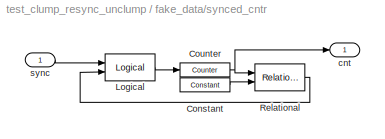
BLOCK [SubSystem] fake_data/synced_cntr
  AncestorBlock = isi_correlator_lib/synced_cntr
  FunctionWithSeparateData = off
  MaskDescription = A counter that realigns itself with sync pulses.
  MaskEnableString = on
  MaskHideContents = off
  MaskIconFrame = on
  MaskIconOpaque = on
  MaskIconRotate = none
  MaskIconUnits = autoscale
  MaskPortRotate = default
  MaskPromptString = Counter bitwidth:
  MaskStyleString = edit
  MaskToolTipString = on
  MaskTunableValueString = on
  MaskType = synced_cntr
  MaskValueString = 8
  MaskVariables = bitwidth=@1;
  MaskVisibilityString = on
  MinAlgLoopOccurrences = off
  Opaque = off
  Ports = [1, 1]
  PropExecContextOutsideSubsystem = off
  RTWSystemCode = Auto
  RequestExecContextInheritance = off
  SID = 146
BLOCK [Reference] fake_data/synced_cntr/Constant  REF=xbsIndex_r4/Constant
  Ports = [0, 1]
  SID = 1355
  SourceBlock = xbsIndex_r4/Constant
  SourceType = Xilinx Constant Block Block
  arith_type = Unsigned
  bin_pt = 0
  block_type = constant
  block_version = 10.1.1
  carry = CIN
  const = 2^bitwidth - 2
  dbl_ovrd = off
  dsp48_infoedit = The use of this block for DSP48 instructions is deprecated.  Please use the Opmode block.
  equ = P=C
  explicit_period = on
  has_advanced_control = 0
  inp1 = P
  inp2 = PCIN>>17
  n_bits = bitwidth
  opr = +
  opselect = C
  period = 1
  sg_icon_stat = 50,14,0,1,white,blue,0,e2595f08,right,
  sg_mask_display = fprintf('','COMMENT: begin icon graphics');\npatch([0 1 1 0 ],[0 0 1 1 ],[0.77 0.82 0.91]);\npatch([0.42 0.38 0.44 0.38 0.42 0.5 0.52 0.54 0.62 0.56 0.5 0.46 0.52 0.46 0.5 0.56 0.62 0.54 0.52 0.5 0.42 ],[0.142857 0.285714 0.5 0.714286 0.857143 0.857143 0.785714 0.857143 0.857143 0.642857 0.857143 0.714286 0.5 0.285714 0.142857 0.357143 0.142857 0.142857 0.214286 0.142857 0.142857 ],[0.98 0.96 0.92...<+208ch>
  sggui_pos = 20,20,554,541
BLOCK [Reference] fake_data/synced_cntr/Counter  REF=xbsIndex_r4/Counter
  Ports = [1, 1]
  SID = 546
  SourceBlock = xbsIndex_r4/Counter
  SourceType = Xilinx Counter Block
  arith_type = Unsigned
  bin_pt = 0
  block_type = counter
  block_version = 10.1.3
  cnt_by_val = 8
  cnt_to = Inf
  cnt_type = Free Running
  dbl_ovrd = off
  en = off
  explicit_period = on
  has_advanced_control = 0
  implementation = Fabric
  infoedit = Hardware notes: Free running counters are the least expensive in hardware.  A count limited counter is implemented by combining a counter with a comparator.
  load_pin = off
  n_bits = bitwidth
  operation = Up
  period = 1
  rst = on
  sg_icon_stat = 50,14,1,1,white,blue,0,c59595e6,right,
  sg_mask_display = fprintf('','COMMENT: begin icon graphics');\npatch([0 1 1 0 ],[0 0 1 1 ],[0.77 0.82 0.91]);\npatch([0.42 0.38 0.44 0.38 0.42 0.5 0.52 0.54 0.62 0.56 0.5 0.46 0.52 0.46 0.5 0.56 0.62 0.54 0.52 0.5 0.42 ],[0.142857 0.285714 0.5 0.714286 0.857143 0.857143 0.785714 0.857143 0.857143 0.642857 0.857143 0.714286 0.5 0.285714 0.142857 0.357143 0.142857 0.142857 0.214286 0.142857 0.142857 ],[0.98 0.96 0.92...<+253ch>
  sggui_pos = 20,20,543,936
  start_count = 0
  use_behavioral_HDL = off
  use_rpm = off
  xl_area = [0,0,0,0,0,0,0]
  xl_use_area = off
BLOCK [Reference] fake_data/synced_cntr/Logical  REF=xbsIndex_r4/Logical
  Ports = [2, 1]
  SID = 548
  SourceBlock = xbsIndex_r4/Logical
  SourceType = Xilinx Logical Block Block
  align_bp = on
  arith_type = Unsigned
  bin_pt = 0
  block_type = logical
  block_version = 11.3
  dbl_ovrd = off
  en = off
  has_advanced_control = 0
  inputs = 2
  latency = 0
  logical_function = AND
  n_bits = 16
  precision = Full
  sg_icon_stat = 50,27,2,1,white,blue,0,0a851f85,right,
  sg_mask_display = fprintf('','COMMENT: begin icon graphics');\npatch([0 1 1 0 ],[0 0 1 1 ],[0.77 0.82 0.91]);\npatch([0.34 0.26 0.38 0.26 0.34 0.48 0.52 0.56 0.72 0.6 0.48 0.4 0.52 0.4 0.48 0.6 0.72 0.56 0.52 0.48 0.34 ],[0.111111 0.259259 0.481481 0.703704 0.851852 0.851852 0.777778 0.851852 0.851852 0.62963 0.851852 0.703704 0.481481 0.259259 0.111111 0.333333 0.111111 0.111111 0.185185 0.111111 0.111111 ],[0.98 ...<+239ch>
  sggui_pos = 20,20,543,357
  xl_area = [0,0,0,0,0,0,0]
  xl_use_area = off
BLOCK [Reference] fake_data/synced_cntr/Relational  REF=xbsIndex_r4/Relational
  Ports = [2, 1]
  SID = 1354
  SourceBlock = xbsIndex_r4/Relational
  SourceType = Xilinx Arithmetic Relational Operator Block
  block_type = relational
  block_version = 11.4
  dbl_ovrd = off
  en = off
  has_advanced_control = 0
  latency = 1
  mode = a!=b
  sg_icon_stat = 50,27,2,1,white,blue,0,9551bfee,right,
  sg_list_contents = {'table'=>{'mode'=>'popup(a=b|a!=b|a<b|a>b|a<=b|a>=b)','userSelections'=>{'mode'=>'a!=b'}}}
  sg_mask_display = fprintf('','COMMENT: begin icon graphics');\npatch([0 1 1 0 ],[0 0 1 1 ],[0.77 0.82 0.91]);\npatch([0.34 0.26 0.38 0.26 0.34 0.48 0.52 0.56 0.72 0.6 0.48 0.4 0.52 0.4 0.48 0.6 0.72 0.56 0.52 0.48 0.34 ],[0.111111 0.259259 0.481481 0.703704 0.851852 0.851852 0.777778 0.851852 0.851852 0.62963 0.851852 0.703704 0.481481 0.259259 0.111111 0.333333 0.111111 0.111111 0.185185 0.111111 0.111111 ],[0.98 ...<+332ch>
  sggui_pos = -1,-1,-1,-1
  xl_area = [0,0,0,0,0,0,0]
  xl_use_area = off
BLOCK [Outport] fake_data/synced_cntr/cnt
  IconDisplay = Port number
  SID = 551
BLOCK [Inport] fake_data/synced_cntr/sync
  IconDisplay = Port number
  SID = 545
BLOCK [Reference] sync_delay1  REF=xbsIndex_r4/Delay
  Ports = [1, 1]
  SID = 166
  SourceBlock = xbsIndex_r4/Delay
  SourceType = Xilinx Delay Block
  block_type = delay
  block_version = 10.1.3
  dbl_ovrd = off
  en = off
  has_advanced_control = 0
  infoedit = Hardware notes: A delay line is a chain, each link of which is an SRL16 followed by a flip-flop.
  latency = 11
  reg_retiming = off
  sg_icon_stat = 50,14,1,1,white,blue,0,1a71059f,right,
  sg_mask_display = fprintf('','COMMENT: begin icon graphics');\npatch([0 1 1 0 ],[0 0 1 1 ],[0.77 0.82 0.91]);\npatch([0.42 0.38 0.44 0.38 0.42 0.5 0.52 0.54 0.62 0.56 0.5 0.46 0.52 0.46 0.5 0.56 0.62 0.54 0.52 0.5 0.42 ],[0.142857 0.285714 0.5 0.714286 0.857143 0.857143 0.785714 0.857143 0.857143 0.642857 0.857143 0.714286 0.5 0.285714 0.142857 0.357143 0.142857 0.142857 0.214286 0.142857 0.142857 ],[0.98 0.96 0.92...<+210ch>  <repeated x4 — deduplicated; at blocks: sync_delay1, sync_delay2, sync_delay4, sync_delay5>
  sggui_pos = 20,20,543,392
  xl_area = [0,0,0,0,0,0,0]
  xl_use_area = off
BLOCK [Reference] sync_delay2  REF=xbsIndex_r4/Delay
  Ports = [1, 1]
  SID = 167
  SourceBlock = xbsIndex_r4/Delay
  SourceType = Xilinx Delay Block
  block_type = delay
  block_version = 10.1.3
  dbl_ovrd = off
  en = off
  has_advanced_control = 0
  infoedit = Hardware notes: A delay line is a chain, each link of which is an SRL16 followed by a flip-flop.
  latency = 11
  reg_retiming = off
  sg_icon_stat = 50,14,1,1,white,blue,0,1a71059f,right,
  sggui_pos = 20,20,543,392
  xl_area = [0,0,0,0,0,0,0]
  xl_use_area = off
BLOCK [Reference] sync_delay4  REF=xbsIndex_r4/Delay
  Ports = [1, 1]
  SID = 169
  SourceBlock = xbsIndex_r4/Delay
  SourceType = Xilinx Delay Block
  block_type = delay
  block_version = 10.1.3
  dbl_ovrd = off
  en = off
  has_advanced_control = 0
  infoedit = Hardware notes: A delay line is a chain, each link of which is an SRL16 followed by a flip-flop.
  latency = 17
  reg_retiming = off
  sg_icon_stat = 50,14,1,1,white,blue,0,1003b046,right,
  sggui_pos = 20,20,543,392
  xl_area = [0,0,0,0,0,0,0]
  xl_use_area = off
BLOCK [Reference] sync_delay5  REF=xbsIndex_r4/Delay
  Ports = [1, 1]
  SID = 170
  SourceBlock = xbsIndex_r4/Delay
  SourceType = Xilinx Delay Block
  block_type = delay
  block_version = 10.1.3
  dbl_ovrd = off
  en = off
  has_advanced_control = 0
  infoedit = Hardware notes: A delay line is a chain, each link of which is an SRL16 followed by a flip-flop.
  latency = 17
  reg_retiming = off
  sg_icon_stat = 50,14,1,1,white,blue,0,1003b046,right,
  sggui_pos = 20,20,543,392
  xl_area = [0,0,0,0,0,0,0]
  xl_use_area = off
BLOCK [Reference] sync_delay7  REF=xbsIndex_r4/Delay
  Ports = [1, 1]
  SID = 185
  SourceBlock = xbsIndex_r4/Delay
  SourceType = Xilinx Delay Block
  block_type = delay
  block_version = 10.1.3
  dbl_ovrd = off
  en = off
  has_advanced_control = 0
  infoedit = Hardware notes: A delay line is a chain, each link of which is an SRL16 followed by a flip-flop.
  latency = 1
  reg_retiming = off
  sg_icon_stat = 50,14,1,1,white,blue,0,07b98262,right,
  sg_mask_display = fprintf('','COMMENT: begin icon graphics');\npatch([0 1 1 0 ],[0 0 1 1 ],[0.77 0.82 0.91]);\npatch([0.42 0.38 0.44 0.38 0.42 0.5 0.52 0.54 0.62 0.56 0.5 0.46 0.52 0.46 0.5 0.56 0.62 0.54 0.52 0.5 0.42 ],[0.142857 0.285714 0.5 0.714286 0.857143 0.857143 0.785714 0.857143 0.857143 0.642857 0.857143 0.714286 0.5 0.285714 0.142857 0.357143 0.142857 0.142857 0.214286 0.142857 0.142857 ],[0.98 0.96 0.92...<+209ch>
  sggui_pos = 20,20,543,392
  xl_area = [0,0,0,0,0,0,0]
  xl_use_area = off
BLOCK [Reference] sync_gen  REF=xbsIndex_r4/Counter
  Ports = [0, 1]
  SID = 201
  SourceBlock = xbsIndex_r4/Counter
  SourceType = Xilinx Counter Block
  arith_type = Unsigned
  bin_pt = 0
  block_type = counter
  block_version = 10.1.3
  cnt_by_val = 1
  cnt_to = Inf
  cnt_type = Free Running
  dbl_ovrd = off
  en = off
  explicit_period = on
  has_advanced_control = 0
  implementation = Fabric
  infoedit = Hardware notes: Free running counters are the least expensive in hardware.  A count limited counter is implemented by combining a counter with a comparator.
  load_pin = off
  n_bits = 7
  operation = Up
  period = 1
  rst = off
  sg_icon_stat = 50,14,0,1,white,blue,0,335d209d,right,
  sg_mask_display = fprintf('','COMMENT: begin icon graphics');\npatch([0 1 1 0 ],[0 0 1 1 ],[0.77 0.82 0.91]);\npatch([0.42 0.38 0.44 0.38 0.42 0.5 0.52 0.54 0.62 0.56 0.5 0.46 0.52 0.46 0.5 0.56 0.62 0.54 0.52 0.5 0.42 ],[0.142857 0.285714 0.5 0.714286 0.857143 0.857143 0.785714 0.857143 0.857143 0.642857 0.857143 0.714286 0.5 0.285714 0.142857 0.357143 0.142857 0.142857 0.214286 0.142857 0.142857 ],[0.98 0.96 0.92...<+208ch>
  sggui_pos = 0,0,543,936
  start_count = 0
  use_behavioral_HDL = off
  use_rpm = off
  xl_area = [0,0,0,0,0,0,0]
  xl_use_area = off
BLOCK [Reference] unclump  REF=isi_correlator_lib/unclump  (lib defined in mdl_4b72aa53f299)
  FunctionWithSeparateData = off
  Ports = [4, 10]
  RTWMemSecDataConstants = Inherit from model
  RTWMemSecDataInternal = Inherit from model
  RTWMemSecDataParameters = Inherit from model
  RTWMemSecFuncExecute = Inherit from model
  RTWMemSecFuncInitTerm = Inherit from model
  SID = 204
  ShowPortLabels = FromPortIcon
  SourceBlock = isi_correlator_lib/unclump
  SystemSampleTime = -1
  latency = 1
BLOCK [Reference] xaui_resync  REF=isi_correlator_lib/xaui_resync  (lib defined in mdl_4b72aa53f299)
  FunctionWithSeparateData = off
  Ports = [6, 5]
  RTWMemSecDataConstants = Inherit from model
  RTWMemSecDataInternal = Inherit from model
  RTWMemSecDataParameters = Inherit from model
  RTWMemSecFuncExecute = Inherit from model
  RTWMemSecFuncInitTerm = Inherit from model
  SID = 203
  ShowPortLabels = FromPortIcon
  SourceBlock = isi_correlator_lib/xaui_resync
  SourceType = link_demux
  SystemSampleTime = -1
  buffer_depth = 5
  logic_latency = 1
LINE Constant1:1 -> Relational:1
LINE From10:1 -> Gateway Out11:1
LINE From11:1 -> Gateway Out30:1
NET From12:1 -> Gateway Out23:1, sync_delay1:1, sync_delay4:1, xaui_resync:1
NET From13:1 -> Gateway Out21:1, xaui_resync:2
LINE From14:1 -> sync_delay2:1
LINE From15:1 -> sync_delay5:1
LINE From16:1 -> Gateway Out27:1
LINE From1:1 -> Gateway Out3:1
LINE From20:1 -> Gateway Out2:1
LINE From2:1 -> Gateway Out4:1
LINE From3:1 -> Gateway Out5:1
LINE From4:1 -> Gateway Out1:1
LINE From5:1 -> Gateway Out6:1
LINE From6:1 -> Gateway Out7:1
LINE From7:1 -> Gateway Out8:1
LINE From8:1 -> Gateway Out9:1
LINE From9:1 -> Gateway Out10:1
LINE Gateway Out10:1 -> Scope1:10
LINE Gateway Out11:1 -> Scope1:11
LINE Gateway Out12:1 -> Scope2:2
LINE Gateway Out13:1 -> Scope2:3
LINE Gateway Out14:1 -> Scope2:1
LINE Gateway Out15:1 -> Scope2:4
LINE Gateway Out16:1 -> Scope2:5
LINE Gateway Out17:1 -> Scope2:6
LINE Gateway Out18:1 -> Scope2:7
LINE Gateway Out19:1 -> Scope2:8
LINE Gateway Out1:1 -> Scope1:12
LINE Gateway Out20:1 -> Scope2:9
LINE Gateway Out21:1 -> Scope3:2
LINE Gateway Out22:1 -> Scope3:3
LINE Gateway Out23:1 -> Scope3:1
LINE Gateway Out24:1 -> Scope3:4
LINE Gateway Out25:1 -> Scope3:5
LINE Gateway Out26:1 -> Scope3:6
LINE Gateway Out27:1 -> Scope3:7
LINE Gateway Out2:1 -> Scope1:2
LINE Gateway Out30:1 -> Scope1:1
LINE Gateway Out31:1 -> Scope4:2
LINE Gateway Out32:1 -> Scope4:3
LINE Gateway Out33:1 -> Scope4:1
LINE Gateway Out34:1 -> Scope4:4
LINE Gateway Out35:1 -> Scope4:5
LINE Gateway Out3:1 -> Scope1:3
LINE Gateway Out4:1 -> Scope1:4
LINE Gateway Out5:1 -> Scope1:5
LINE Gateway Out6:1 -> Scope1:6
LINE Gateway Out7:1 -> Scope1:7
LINE Gateway Out8:1 -> Scope1:8
LINE Gateway Out9:1 -> Scope1:9
LINE Relational:1 -> fake_data:1
LINE clump:1 -> Goto16:1
LINE clump:2 -> Goto15:1
LINE clump:3 -> Goto14:1
LINE clump:4 -> Goto13:1
LINE clump:5 -> Goto4:1
LINE fake_data/AddSub1:1 -> fake_data/o1:1
LINE fake_data/AddSub2:1 -> fake_data/o2:1
LINE fake_data/AddSub3:1 -> fake_data/o3:1
LINE fake_data/AddSub4:1 -> fake_data/o4:1
LINE fake_data/AddSub5:1 -> fake_data/o5:1
LINE fake_data/AddSub6:1 -> fake_data/o6:1
LINE fake_data/AddSub7:1 -> fake_data/o7:1
LINE fake_data/Constant1:1 -> fake_data/AddSub2:2
LINE fake_data/Constant2:1 -> fake_data/AddSub3:2
LINE fake_data/Constant3:1 -> fake_data/AddSub4:2
LINE fake_data/Constant4:1 -> fake_data/AddSub5:2
LINE fake_data/Constant5:1 -> fake_data/AddSub6:2
LINE fake_data/Constant6:1 -> fake_data/AddSub7:2
LINE fake_data/Constant:1 -> fake_data/AddSub1:2
NET fake_data/sync:1 -> fake_data/sync_out:1, fake_data/synced_cntr:1
LINE fake_data/synced_cntr/Constant:1 -> fake_data/synced_cntr/Relational:2
NET fake_data/synced_cntr/Counter:1 -> fake_data/synced_cntr/Relational:1, fake_data/synced_cntr/cnt:1
LINE fake_data/synced_cntr/Logical:1 -> fake_data/synced_cntr/Counter:1
LINE fake_data/synced_cntr/Relational:1 -> fake_data/synced_cntr/Logical:2
LINE fake_data/synced_cntr/sync:1 -> fake_data/synced_cntr/Logical:1
NET fake_data/synced_cntr:1 -> fake_data/AddSub1:1, fake_data/AddSub2:1, fake_data/AddSub3:1, fake_data/AddSub4:1, fake_data/AddSub5:1, fake_data/AddSub6:1, fake_data/AddSub7:1, fake_data/o0:1
NET fake_data:1 -> Gateway Out14:1, clump:1
NET fake_data:2 -> Gateway Out12:1, clump:2
NET fake_data:3 -> Gateway Out13:1, clump:3
NET fake_data:4 -> Gateway Out15:1, clump:4
NET fake_data:5 -> Gateway Out16:1, clump:5
NET fake_data:6 -> Gateway Out17:1, clump:6
NET fake_data:7 -> Gateway Out18:1, clump:7
NET fake_data:8 -> Gateway Out19:1, clump:8
NET fake_data:9 -> Gateway Out20:1, clump:9
NET sync_delay1:1 -> Gateway Out22:1, xaui_resync:3
NET sync_delay2:1 -> Gateway Out24:1, xaui_resync:4
NET sync_delay4:1 -> Gateway Out25:1, xaui_resync:5
NET sync_delay5:1 -> Gateway Out26:1, xaui_resync:6
LINE sync_delay7:1 -> Goto12:1
LINE sync_gen:1 -> Relational:2
LINE unclump:1 -> Goto7:1
LINE unclump:10 -> Goto11:1
LINE unclump:2 -> Goto1:1
LINE unclump:3 -> Goto2:1
LINE unclump:4 -> Goto3:1
LINE unclump:5 -> Goto5:1
LINE unclump:6 -> Goto6:1
LINE unclump:7 -> Goto8:1
LINE unclump:8 -> Goto9:1
LINE unclump:9 -> Goto10:1
NET xaui_resync:1 -> Gateway Out33:1, unclump:1
NET xaui_resync:2 -> Gateway Out31:1, unclump:2
NET xaui_resync:3 -> Gateway Out32:1, unclump:3
NET xaui_resync:4 -> Gateway Out34:1, unclump:4
NET xaui_resync:5 -> Gateway Out35:1, sync_delay7:1
note: NET lines group one-source signal fan-out (src -> all destinations, sorted); 1:1 wires keep LINE
